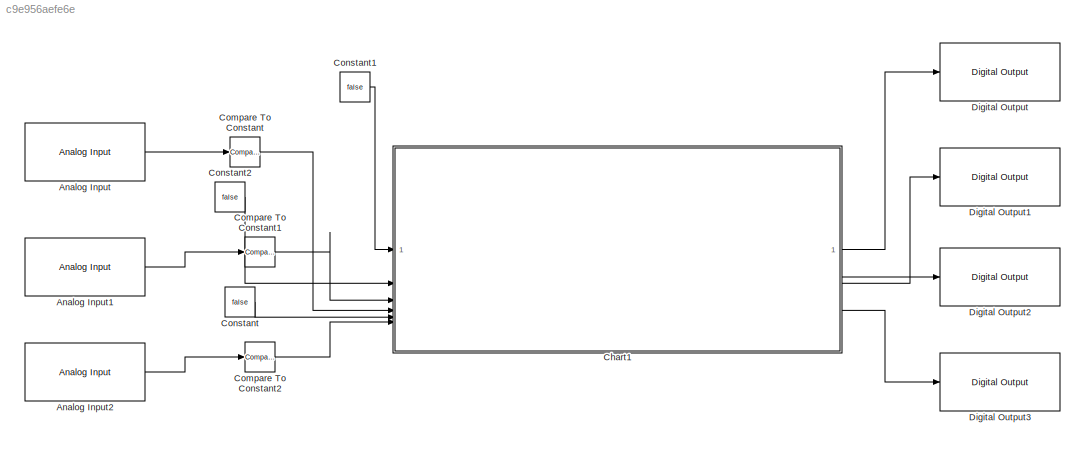
MODEL slx_c9e956aefe6e
KIND model
CONFIG AbsTol = auto
CONFIG EnableMultiTasking = on
CONFIG FixedStep = 0.1
CONFIG MaxStep = auto
CONFIG MinStep = auto
CONFIG RelTol = 1e-3
CONFIG SampleTimeConstraint = Unconstrained
CONFIG SolverName = FixedStepDiscrete
CONFIG StartTime = 0.0
CONFIG StopTime = 10.0
BLOCK [Reference] Analog Input  REF=arduinolib/Analog Input
  SourceBlock = arduinolib/Analog Input
  SourceType = Arduino Analog Input
BLOCK [Reference] Analog Input1  REF=arduinolib/Analog Input
  SourceBlock = arduinolib/Analog Input
  SourceType = Arduino Analog Input
BLOCK [Reference] Analog Input2  REF=arduinolib/Analog Input
  SourceBlock = arduinolib/Analog Input
  SourceType = Arduino Analog Input
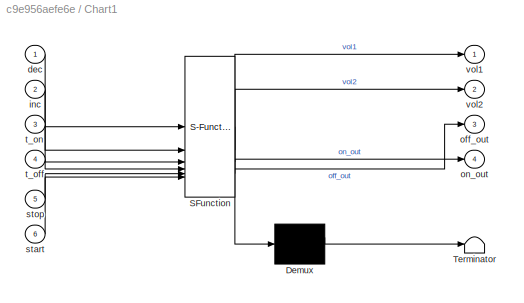
BLOCK [SubSystem] Chart1
  ErrorFcn = Stateflow.Translate.translate
  PermitHierarchicalResolution = ExplicitOnly
  SFBlockType = Chart
  TreatAsAtomicUnit = on
BLOCK [Demux] Chart1/ Demux 
  Outputs = 1
BLOCK [S-Function] Chart1/ SFunction 
  EnableBusSupport = on
  FunctionName = sf_sfun
  PortCounts = [6 5]
  SFcnIsStateOwnerBlock = off
  SFunctionDeploymentMode = off
  Tag = Stateflow S-Function 1
BLOCK [Terminator] Chart1/ Terminator 
BLOCK [Inport] Chart1/dec
BLOCK [Inport] Chart1/inc
  Port = 2
BLOCK [Outport] Chart1/off_out
  Port = 3
BLOCK [Outport] Chart1/on_out
  Port = 4
BLOCK [Inport] Chart1/start
  Port = 6
BLOCK [Inport] Chart1/stop
  Port = 5
BLOCK [Inport] Chart1/t_off
  Port = 4
BLOCK [Inport] Chart1/t_on
  Port = 3
BLOCK [Outport] Chart1/vol1
BLOCK [Outport] Chart1/vol2
  Port = 2
BLOCK [Reference] Compare To Constant  REF=simulink/Logic and Bit
Operations/Compare
To Constant
  SourceBlock = simulink/Logic and Bit\nOperations/Compare\nTo Constant
  SourceType = Compare To Constant
BLOCK [Reference] Compare To Constant1  REF=simulink/Logic and Bit
Operations/Compare
To Constant
  SourceBlock = simulink/Logic and Bit\nOperations/Compare\nTo Constant
  SourceType = Compare To Constant
BLOCK [Reference] Compare To Constant2  REF=simulink/Logic and Bit
Operations/Compare
To Constant
  SourceBlock = simulink/Logic and Bit\nOperations/Compare\nTo Constant
  SourceType = Compare To Constant
BLOCK [Constant] Constant
  Value = false
BLOCK [Constant] Constant1
  Value = false
BLOCK [Constant] Constant2
  Value = false
BLOCK [Reference] Digital Output  REF=arduinolib/Digital Output
  SourceBlock = arduinolib/Digital Output
  SourceType = Arduino Digital Output
BLOCK [Reference] Digital Output1  REF=arduinolib/Digital Output
  SourceBlock = arduinolib/Digital Output
  SourceType = Arduino Digital Output
BLOCK [Reference] Digital Output2  REF=arduinolib/Digital Output
  SourceBlock = arduinolib/Digital Output
  SourceType = Arduino Digital Output
BLOCK [Reference] Digital Output3  REF=arduinolib/Digital Output
  SourceBlock = arduinolib/Digital Output
  SourceType = Arduino Digital Output
LINE Analog Input1:1 -> Compare To Constant1:1
LINE Analog Input2:1 -> Compare To Constant2:1
LINE Analog Input:1 -> Compare To Constant:1
LINE Chart1:1 -> Digital Output:1
LINE Chart1:2 -> Digital Output1:1
LINE Chart1:3 -> Digital Output2:1
LINE Chart1:4 -> Digital Output3:1
LINE Compare To Constant1:1 -> Chart1:3
LINE Compare To Constant2:1 -> Chart1:6
LINE Compare To Constant:1 -> Chart1:4
LINE Constant1:1 -> Chart1:1
LINE Constant2:1 -> Chart1:2
LINE Constant:1 -> Chart1:5
CHART Chart1 states=8 transitions=13
  STATE_LABEL 'Shut'
  STATE_LABEL 'Op'
  STATE_LABEL 'Mode'
  STATE_LABEL 'On'
  STATE_LABEL 'Off'
  STATE_LABEL '[t_on]'
  STATE_LABEL '[t_on]{on_out = false; off_out = true}'
  STATE_LABEL '[t_off]{off_out = false; on_out = true}'
  STATE_LABEL 'Vol'
  STATE_LABEL 'Vol1'
  STATE_LABEL 'Vol2'
  STATE_LABEL '[dec]{vol1 = false; vol2 = true}'
  STATE_LABEL '[inc]{vol1 = true; vol2 = false}'
  STATE_LABEL '[t_on]'
  STATE_LABEL 'Mode'
  STATE_LABEL 'On'
  STATE_LABEL 'Off'
  STATE_LABEL '[t_on]'
  STATE_LABEL '[t_on]{on_out = false; off_out = true}'
  STATE_LABEL '[t_off]{off_out = false; on_out = true}'
  STATE_LABEL 'On'
  STATE_LABEL 'Off'
  STATE_LABEL 'Vol'
  STATE_LABEL 'Vol1'
  STATE_LABEL 'Vol2'
  STATE_LABEL '[dec]{vol1 = false; vol2 = true}'
  STATE_LABEL '[inc]{vol1 = true; vol2 = false}'
  STATE_LABEL 'Vol1'
  STATE_LABEL 'Vol2'
CHART  states=0 transitions=0
